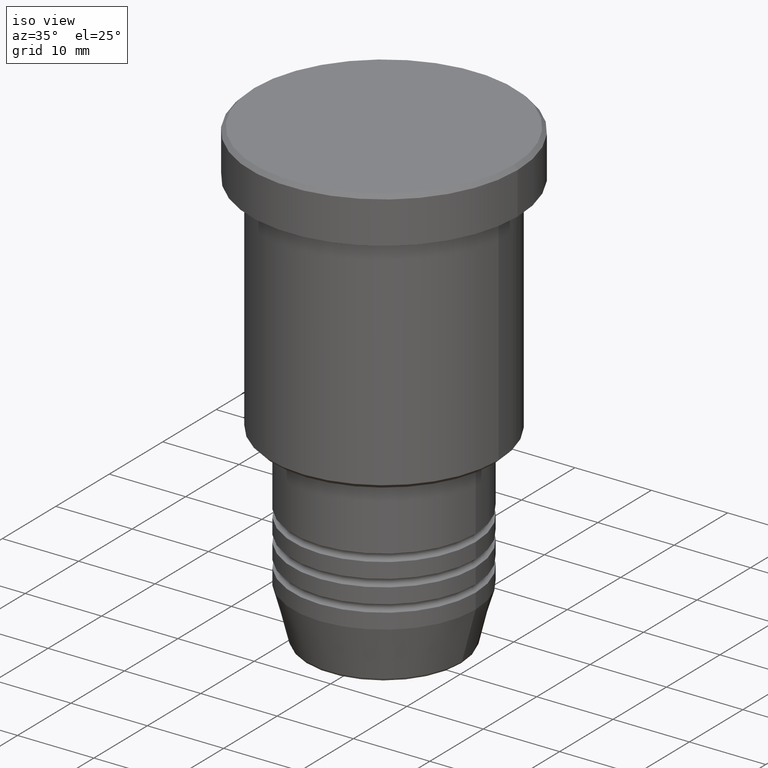
[diagram: clean part render]
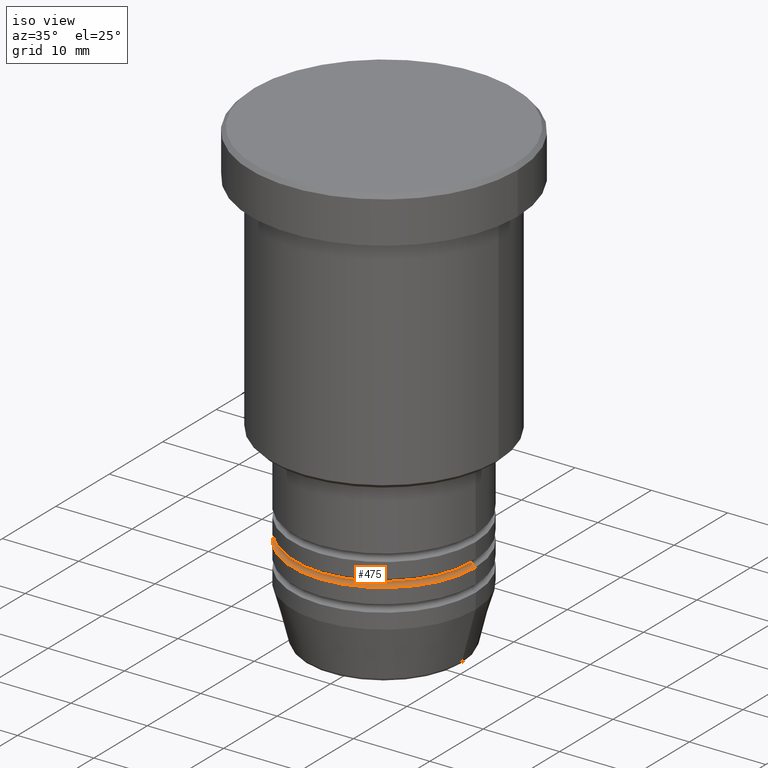
[diagram: same view with one face highlighted and labeled with its STEP entity id]
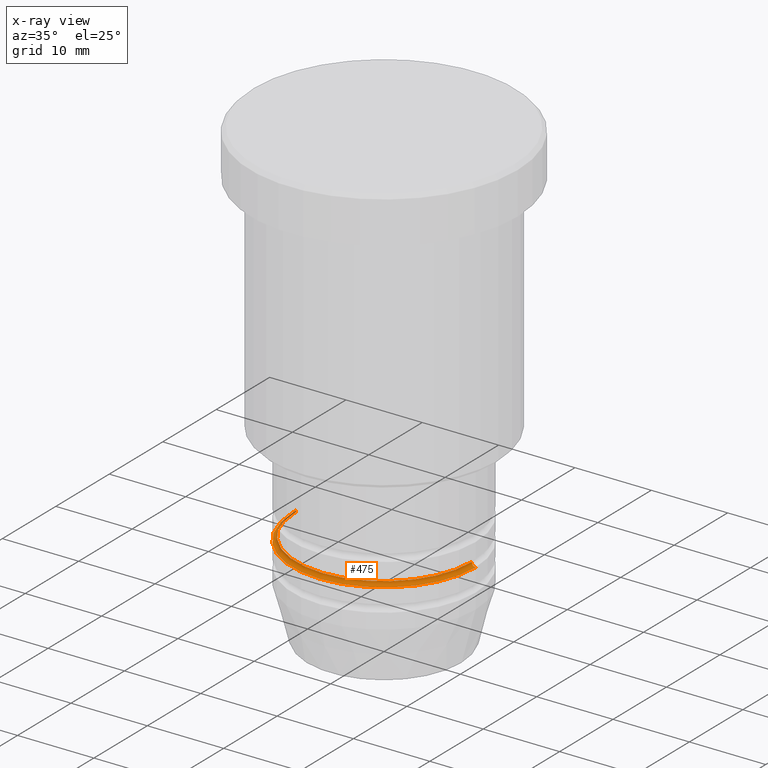
[diagram: x-ray of the same camera — body ghosted, the highlighted face saturated]
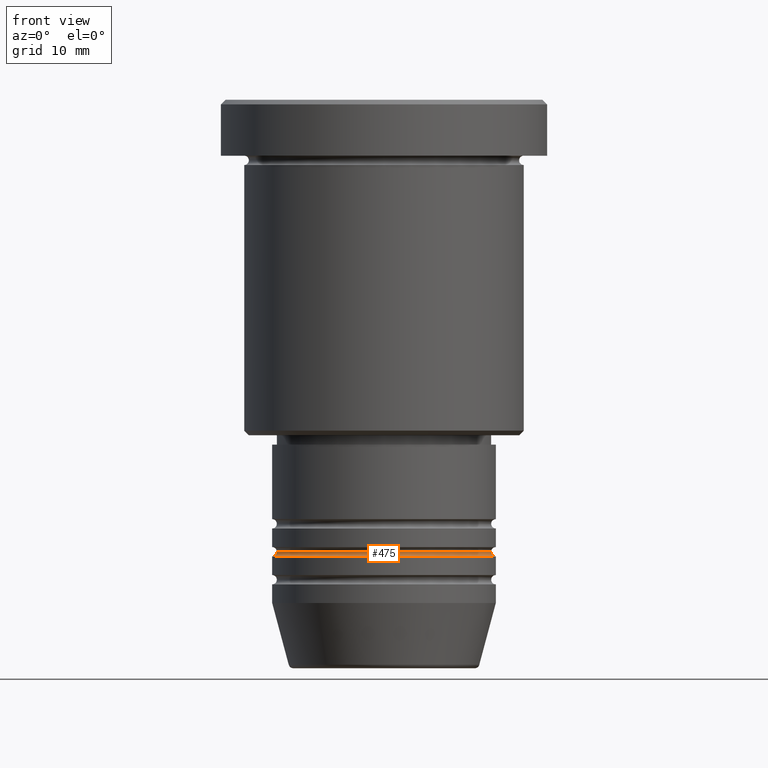
[diagram: same view with one face highlighted and labeled with its STEP entity id]
A machine part, iso view. The second image highlights one B-rep face of the part: STEP entity #475.
The next image is the same camera in x-ray: the body ghosted, the highlighted face saturated — about 2% of this face is hidden behind the body in this view.
A second angle (front view) of the same face is appended — the face is thin or edge-on in the first view.
In plain terms, the highlighted toroidal blend (fillet) surface has major radius 12 mm and minor (blend) radius 0.5 mm.
Its self-contained STEP definition (entity closure, byte-faithful):
#16 = CARTESIAN_POINT ( 'NONE',  ( 12.00000000000000000, 0.000000000000000000, -48.99999999999997158 ) ) ;
#23 = CARTESIAN_POINT ( 'NONE',  ( 12.00000000000000000, 0.000000000000000000, -48.49999999999997158 ) ) ;
#52 = AXIS2_PLACEMENT_3D ( 'NONE', #792, #1042, #872 ) ;
#79 = EDGE_LOOP ( 'NONE', ( #297, #1079, #115, #412 ) ) ;
#89 = EDGE_CURVE ( 'NONE', #822, #345, #697, .T. ) ;
#115 = ORIENTED_EDGE ( 'NONE', *, *, #1037, .T. ) ;
#165 = CIRCLE ( 'NONE', #52, 12.00000000000000000 ) ;
#180 = CIRCLE ( 'NONE', #1155, 11.50000000000000000 ) ;
#187 = DIRECTION ( 'NONE',  ( 1.224646799147353207E-16, 1.000000000000000000, 0.000000000000000000 ) ) ;
#297 = ORIENTED_EDGE ( 'NONE', *, *, #615, .F. ) ;
#299 = DIRECTION ( 'NONE',  ( 1.000000000000000000, 0.000000000000000000, 0.000000000000000000 ) ) ;
#321 = DIRECTION ( 'NONE',  ( -0.000000000000000000, -0.000000000000000000, 1.000000000000000000 ) ) ;
#336 = VERTEX_POINT ( 'NONE', #559 ) ;
#345 = VERTEX_POINT ( 'NONE', #1124 ) ;
#357 = VERTEX_POINT ( 'NONE', #16 ) ;
#400 = FACE_OUTER_BOUND ( 'NONE', #79, .T. ) ;
#412 = ORIENTED_EDGE ( 'NONE', *, *, #671, .F. ) ;
#424 = CARTESIAN_POINT ( 'NONE',  ( 0.000000000000000000, 0.000000000000000000, -48.49999999999997158 ) ) ;
#463 = AXIS2_PLACEMENT_3D ( 'NONE', #1007, #187, #554 ) ;
#475 = ADVANCED_FACE ( 'NONE', ( #400 ), #996, .F. ) ;
#490 = AXIS2_PLACEMENT_3D ( 'NONE', #23, #543, #825 ) ;
#543 = DIRECTION ( 'NONE',  ( 0.000000000000000000, -1.000000000000000000, 0.000000000000000000 ) ) ;
#554 = DIRECTION ( 'NONE',  ( -1.000000000000000000, 1.224646799147353454E-16, 0.000000000000000000 ) ) ;
#559 = CARTESIAN_POINT ( 'NONE',  ( 11.50000000000000000, 0.000000000000000000, -48.49999999999997158 ) ) ;
#606 = DIRECTION ( 'NONE',  ( 1.000000000000000000, 0.000000000000000000, 0.000000000000000000 ) ) ;
#615 = EDGE_CURVE ( 'NONE', #822, #336, #180, .T. ) ;
#618 = AXIS2_PLACEMENT_3D ( 'NONE', #846, #1123, #299 ) ;
#641 = CIRCLE ( 'NONE', #490, 0.5000000000000004441 ) ;
#671 = EDGE_CURVE ( 'NONE', #336, #357, #641, .T. ) ;
#697 = CIRCLE ( 'NONE', #463, 0.5000000000000004441 ) ;
#792 = CARTESIAN_POINT ( 'NONE',  ( 0.000000000000000000, 0.000000000000000000, -48.99999999999997158 ) ) ;
#818 = CARTESIAN_POINT ( 'NONE',  ( -11.50000000000000000, 1.438959988998139963E-15, -48.49999999999997158 ) ) ;
#822 = VERTEX_POINT ( 'NONE', #818 ) ;
#825 = DIRECTION ( 'NONE',  ( 0.000000000000000000, 0.000000000000000000, -1.000000000000000000 ) ) ;
#846 = CARTESIAN_POINT ( 'NONE',  ( 0.000000000000000000, 0.000000000000000000, -48.49999999999997158 ) ) ;
#872 = DIRECTION ( 'NONE',  ( 1.000000000000000000, 0.000000000000000000, 0.000000000000000000 ) ) ;
#996 = TOROIDAL_SURFACE ( 'NONE', #618, 12.00000000000000000, 0.5000000000000000000 ) ;
#1007 = CARTESIAN_POINT ( 'NONE',  ( -12.00000000000000000, 1.469576158976823947E-15, -48.49999999999997158 ) ) ;
#1037 = EDGE_CURVE ( 'NONE', #345, #357, #165, .T. ) ;
#1042 = DIRECTION ( 'NONE',  ( -0.000000000000000000, -0.000000000000000000, 1.000000000000000000 ) ) ;
#1079 = ORIENTED_EDGE ( 'NONE', *, *, #89, .T. ) ;
#1123 = DIRECTION ( 'NONE',  ( -0.000000000000000000, -0.000000000000000000, 1.000000000000000000 ) ) ;
#1124 = CARTESIAN_POINT ( 'NONE',  ( -12.00000000000000000, 1.469576158976823947E-15, -48.99999999999997158 ) ) ;
#1155 = AXIS2_PLACEMENT_3D ( 'NONE', #424, #321, #606 ) ;